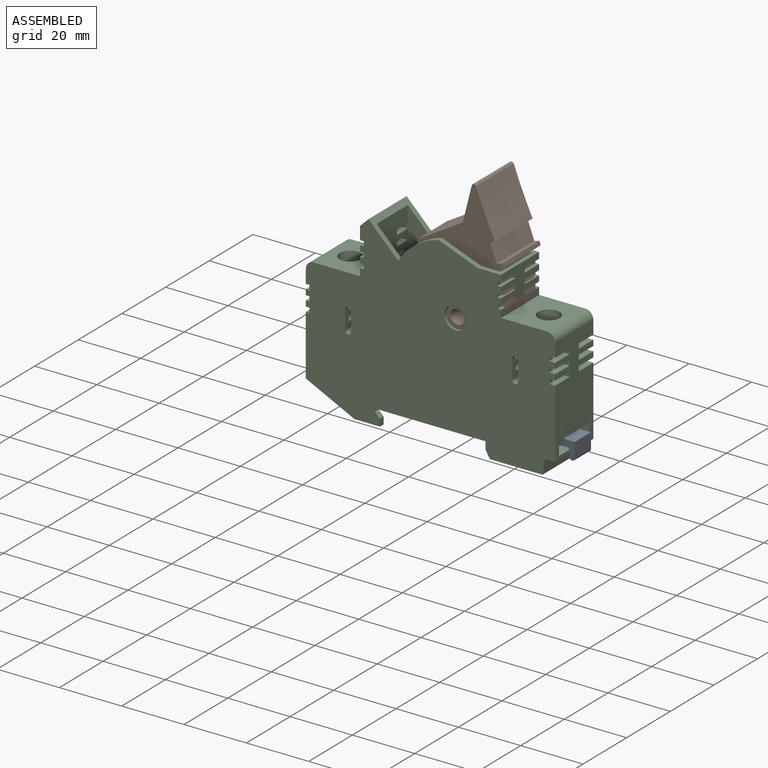
[diagram: assembled view]
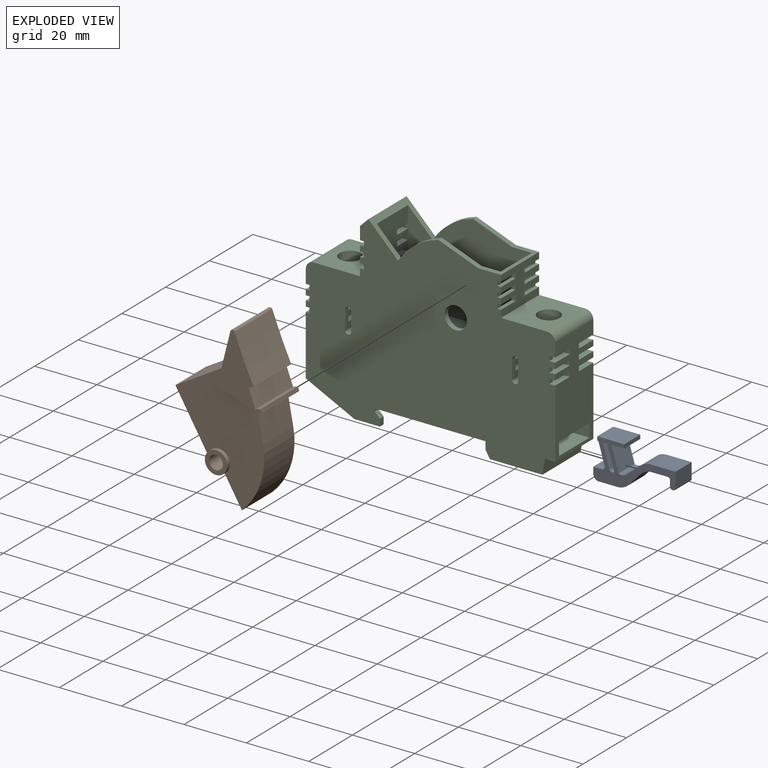
[diagram: exploded view]
GUIDED TOUR — MATED ASSEMBLY (Onshape document b87afcfeec9a8263c654b6d3, AutoMate assembly b87afcfeec9a8263c654b6d3_7910319d848bdd39f43905f7_448a4417e47df3bc1e501c4e_default)

This assembly has 3 components, labeled P0..P2 below (a component is one placed occurrence of a part; the same part can appear more than once), held together by 5 mates. A mate is a constraint between two components; its type names the relative motion it leaves free:
  CYLINDRICAL — leaves both rotation about and translation along the listed axis free,
  PLANAR — leaves sliding in the plane through the listed point (normal = the listed direction) and rotation about that normal free.
Axis/direction vectors are unit vectors and 'through' points are millimeter coordinates, both in the assembly's world frame.

MATES
  1. PLANAR "Planar 2": P0 <-> P2, direction (-1.000, 0.000, 0.000) through (51.93, 6.97, 7.49) mm
  2. CYLINDRICAL "Cylindrical 1": P1 <-> P2, axis (0.000, 1.000, 0.000) through (42.41, 15.38, 33.22) mm
  3. PLANAR "Planar 4": P1 <-> P2, direction (0.000, -1.000, 0.000) through (42.41, -1.04, 33.22) mm
  4. PLANAR "Planar 1": P0 <-> P2, direction (0.000, 0.000, 1.000) through (56.25, 6.97, 8.13) mm
  5. PLANAR "Planar 3": P0 <-> P2, direction (0.000, 1.000, 0.000) through (61.13, 10.66, 1.01) mm

ASSEMBLY ORDER
  1. P2 — the base component [order heuristic]
  2. P0 — core [order heuristic]
  3. P1 [order verified]
Order-tag legend:
  [order verified] — this step's position reverses a verified removal order: the component was checked to insert without passing through the ones already placed.
  [order heuristic] — the first 2 components form the assembly's core: parts whose collision-free extraction could not be verified, listed in mate-graph order.

Of the 3 components, 1 carries the full construction recipe — the FeatureScript program that regenerates the part's solid from scratch; the rest are supplied as boundary geometry only.
Each toured component is shown spotlighted twice — in the assembled view, then in the exploded view, where a leader line traces a displaced component back to its assembled socket (saturated green if recipe-attached, orange if geometry-only; every other component desaturated gray) — followed by its recipe or geometry summary and the mates that hold it.
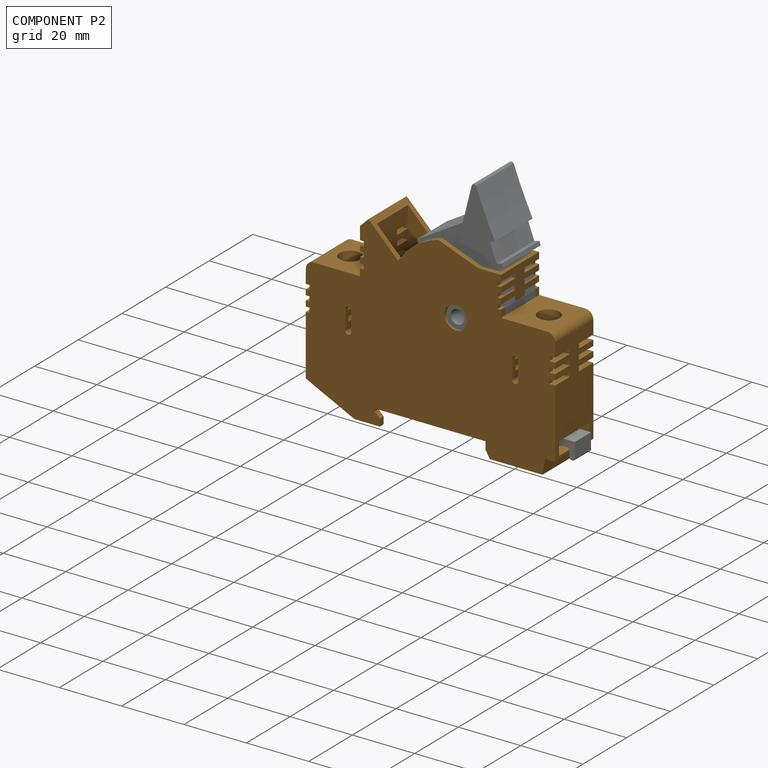
[diagram: component P2 — assembled]
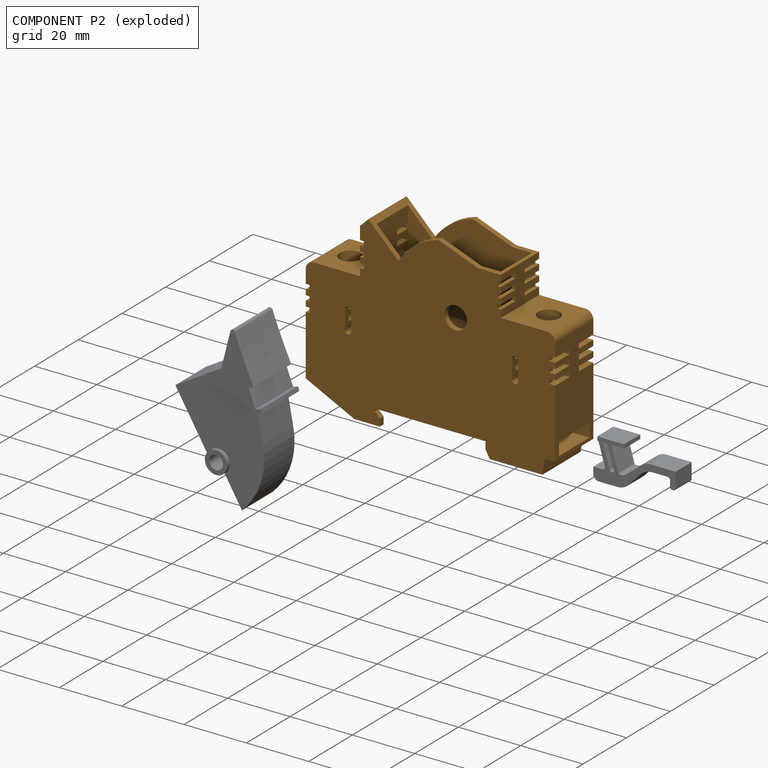
[diagram: component P2 — exploded]
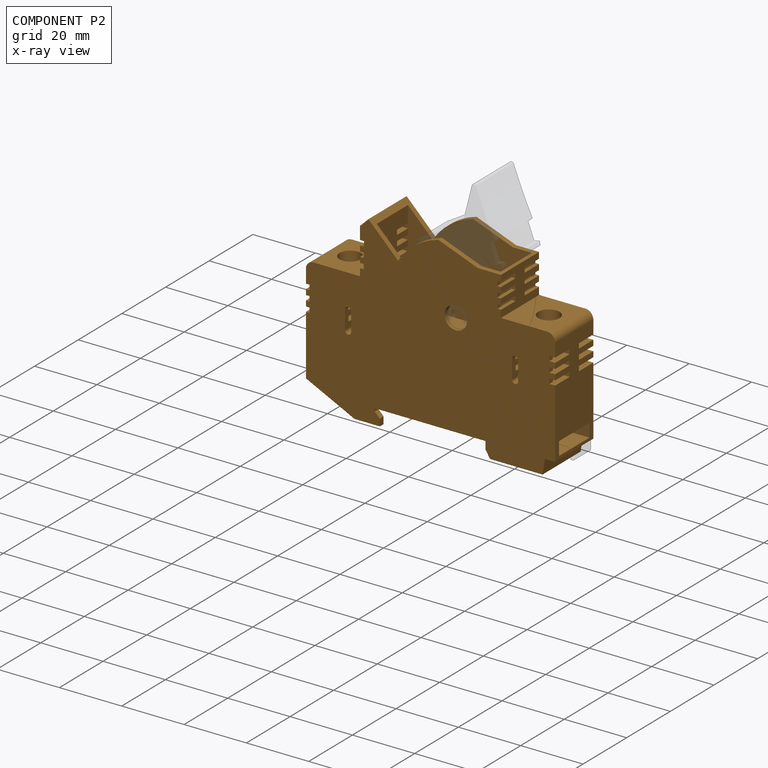
[diagram: component P2 — x-ray view]
COMPONENT P2 — geometry summary (no construction recipe available for this part):
  bounding box: 80.0 x 59.2 x 17.5 mm
  B-rep topology: 1 solid, 207 faces, 1513 edges
  volume: 42278 mm^3 (51% of its bounding box)
  symmetry: mirror-symmetric across its y mid-plane
Held by: PLANAR mate "Planar 2" to P0; CYLINDRICAL mate "Cylindrical 1" to P1; PLANAR mate "Planar 4" to P1; PLANAR mate "Planar 1" to P0; PLANAR mate "Planar 3" to P0.
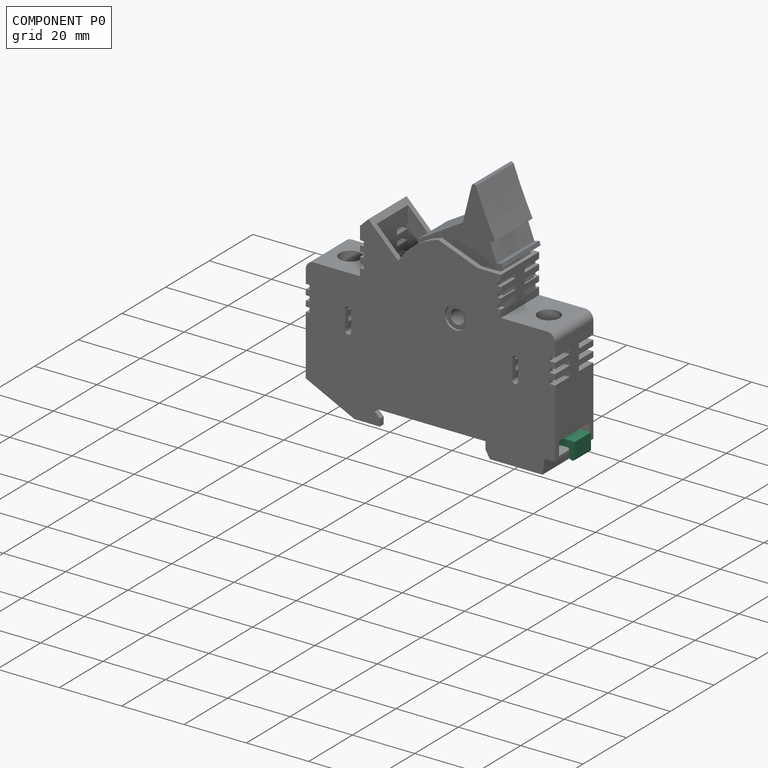
[diagram: component P0 — assembled]
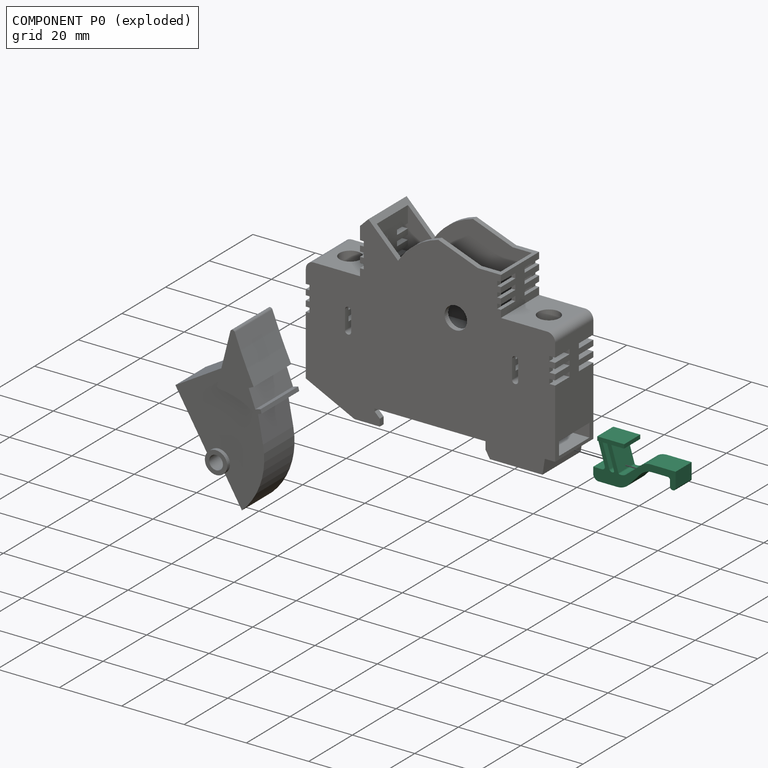
[diagram: component P0 — exploded]
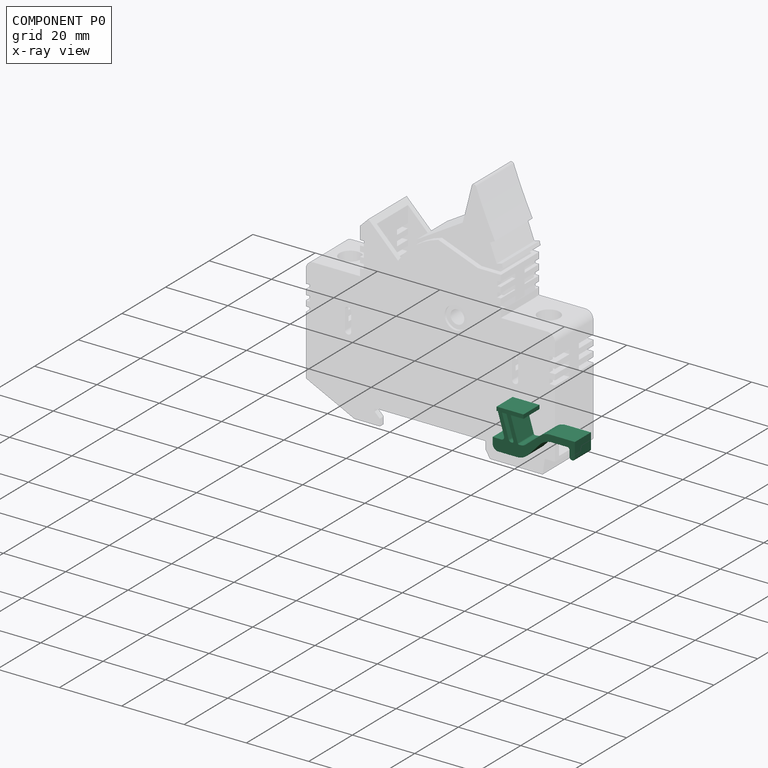
[diagram: component P0 — x-ray view]
COMPONENT P0 — recipe-attached (CADFS 00717068, mesh-verified: the recipe's output STEP matches this component's geometry to below the mesh-comparison resolution (tessellation chordal tolerance ~0.0455 mm)).
Held by: PLANAR mate "Planar 2" to P2; PLANAR mate "Planar 1" to P2; PLANAR mate "Planar 3" to P2.
Construction recipe (FeatureScript — the CAD program that rebuilds this solid; sketch coordinates are in the units given by the * unit suffixes, e.g. mm):

FeatureScript 1511;
import(path : "onshape/std/geometry.fs", version : "1511.0");
import(path : "onshape/std/common.fs", version : "1511.0");
const mm = millimeter;
const VERTEX = EntityType.VERTEX;
const EDGE = EntityType.EDGE;
const FACE = EntityType.FACE;
const BODY = EntityType.BODY;
function v(x, y){return vector(x, y);}
function OD(order){return orderDisambiguation(order);}
function OSD(set){return originalSetDisambiguation(set);}
function TD(topology){return topologyDisambiguation(topology);}
function TDD(query){return trueDependencyDisambiguation(query);}
function sQuery(a, b, c) {return sketchEntityQuery(a, b, c);}

annotation { "Feature Type Name" : "Feature", "Feature Type Description" : "" }
export const myFeature = defineFeature(function(context is Context, id is Id, definition is map)
    precondition{}
    {
        {
            var Q0;
            Q0=qCreatedBy(makeId("Front.planeOp"),FACE);
            var sketch = newSketch(context, id + "F0", { "sketchPlane" : qUnion([Q0])});
            skLineSegment(sketch, "E0.bottom", {"start": v(-8.13, 12.95) * mm, "end": v(-2.21, 12.95) * mm});
            skLineSegment(sketch, "E0.top", {"start": v(-8.64, 0) * mm, "end": v(0, 0) * mm});
            skLineSegment(sketch, "E0.left", {"start": v(-8.64, 12.88) * mm, "end": v(-8.64, 9.14) * mm});
            skLineSegment(sketch, "E0.right", {"start": v(0, 12.45) * mm, "end": v(0, 9.14) * mm});
            skLineSegment(sketch, "E1.bottom", {"start": v(-2.21, 12.95) * mm, "end": v(-8.13, 12.95) * mm});
            skLineSegment(sketch, "E1.top", {"start": v(-7.08, 9.14) * mm, "end": v(-9.9, 9.14) * mm});
            skLineSegment(sketch, "E1.left", {"start": v(0, 12.45) * mm, "end": v(0, 9.14) * mm, "construction": true});
            skLineSegment(sketch, "E1.right", {"start": v(-9.9, 11.18) * mm, "end": v(-9.9, 9.14) * mm});
            skPoint(sketch, "E2.visualSharp", {"position": v(-9.9, 12.95) * mm});
            skArc(sketch, "E2.filletArc", {"start": v(-8.13, 12.95) * mm, "mid": v(-9.39, 12.43) * mm, "end": v(-9.9, 11.18) * mm});
            skLineSegment(sketch, "E3", {"start": v(8.56, 3.56) * mm, "end": v(10.44, 3.56) * mm});
            skLineSegment(sketch, "E4", {"start": v(-8.25, 1.27) * mm, "end": v(-6.23, 8) * mm});
            skLineSegment(sketch, "E5", {"start": v(-6.9, 1.27) * mm, "end": v(-4.73, 8.51) * mm});
            skLineSegment(sketch, "E6", {"start": v(-5.44, 1.27) * mm, "end": v(-3.24, 8.6) * mm});
            skLineSegment(sketch, "E7", {"start": v(-4.1, 1.27) * mm, "end": v(-1.82, 8.84) * mm});
            skLineSegment(sketch, "E8", {"start": v(-7.26, 4.57) * mm, "end": v(-5.91, 4.57) * mm, "construction": true});
            skLineSegment(sketch, "E9", {"start": v(-4.45, 4.57) * mm, "end": v(-3.1, 4.57) * mm, "construction": true});
            skPoint(sketch, "E10.newPointA", {"position": v(-5.88, 9.14) * mm});
            skArc(sketch, "E10.filletArc", {"start": v(-6.23, 8) * mm, "mid": v(-6.37, 8.79) * mm, "end": v(-7.08, 9.14) * mm});
            skLineSegment(sketch, "E11", {"start": v(-3.88, 9.14) * mm, "end": v(-3.65, 9.14) * mm});
            skPoint(sketch, "E12.visualSharp", {"position": v(-4.54, 9.14) * mm});
            skArc(sketch, "E12.filletArc", {"start": v(-3.88, 9.14) * mm, "mid": v(-4.4, 8.97) * mm, "end": v(-4.73, 8.51) * mm});
            skPoint(sketch, "E13.visualSharp", {"position": v(-3.07, 9.14) * mm});
            skArc(sketch, "E13.filletArc", {"start": v(-3.24, 8.6) * mm, "mid": v(-3.3, 8.97) * mm, "end": v(-3.65, 9.14) * mm});
            skLineSegment(sketch, "E14", {"start": v(-1.4, 9.14) * mm, "end": v(-0.92, 9.14) * mm});
            skPoint(sketch, "E15.visualSharp", {"position": v(-1.73, 9.14) * mm});
            skArc(sketch, "E15.filletArc", {"start": v(-1.4, 9.14) * mm, "mid": v(-1.66, 9.06) * mm, "end": v(-1.82, 8.84) * mm});
            skLineSegment(sketch, "E16", {"start": v(-8.64, 1.27) * mm, "end": v(0, 1.27) * mm});
            skPoint(sketch, "E17.orphan", {"position": v(-7.29, 0) * mm});
            skPoint(sketch, "E18.orphan", {"position": v(-5.82, 0) * mm});
            skPoint(sketch, "E19.orphan", {"position": v(-4.48, 0) * mm});
            skLineSegment(sketch, "E20.trimOffspring", {"start": v(-8.64, 1.27) * mm, "end": v(-8.64, 0) * mm});
            skLineSegment(sketch, "E21.trimOffspring", {"start": v(0, 1.27) * mm, "end": v(0, 0) * mm});
            skLineSegment(sketch, "E22", {"start": v(0.7, 8.56) * mm, "end": v(5.32, 4.73) * mm});
            skPoint(sketch, "E23.visualSharp", {"position": v(0, 9.14) * mm});
            skArc(sketch, "E23.filletArc", {"start": v(0.7, 8.56) * mm, "mid": v(-0.05, 9) * mm, "end": v(-0.92, 9.14) * mm});
            skLineSegment(sketch, "E24", {"start": v(1.5, 11.33) * mm, "end": v(5.22, 7.34) * mm});
            skLineSegment(sketch, "E25", {"start": v(6.73, 3.56) * mm, "end": v(6.73, 5.72) * mm, "construction": true});
            skPoint(sketch, "E26.visualSharp", {"position": v(0, 12.95) * mm});
            skArc(sketch, "E26.filletArc", {"start": v(1.5, 11.33) * mm, "mid": v(-0.18, 12.53) * mm, "end": v(-2.21, 12.95) * mm});
            skPoint(sketch, "E27.visualSharp", {"position": v(6.73, 3.56) * mm});
            skArc(sketch, "E27.filletArc", {"start": v(5.32, 4.73) * mm, "mid": v(6.84, 3.86) * mm, "end": v(8.56, 3.56) * mm});
            skLineSegment(sketch, "E28", {"start": v(8.94, 5.72) * mm, "end": v(10.44, 5.72) * mm});
            skLineSegment(sketch, "E29", {"start": v(10.44, 3.56) * mm, "end": v(10.44, 5.72) * mm, "construction": true});
            skPoint(sketch, "E30.visualSharp", {"position": v(6.73, 5.72) * mm});
            skArc(sketch, "E30.filletArc", {"start": v(5.22, 7.34) * mm, "mid": v(6.91, 6.14) * mm, "end": v(8.94, 5.72) * mm});
            skLineSegment(sketch, "E31", {"start": v(16.51, 8.38) * mm, "end": v(16.51, 3.56) * mm});
            skLineSegment(sketch, "E32", {"start": v(10.44, 3.56) * mm, "end": v(16.51, 3.56) * mm});
            skLineSegment(sketch, "E33", {"start": v(15.75, 9.14) * mm, "end": v(15.5, 9.14) * mm});
            skLineSegment(sketch, "E34", {"start": v(14.73, 8.38) * mm, "end": v(14.73, 6.48) * mm});
            skLineSegment(sketch, "E35", {"start": v(13.97, 5.72) * mm, "end": v(10.44, 5.72) * mm});
            skPoint(sketch, "E36.visualSharp", {"position": v(16.51, 9.14) * mm});
            skArc(sketch, "E36.filletArc", {"start": v(16.51, 8.38) * mm, "mid": v(16.29, 8.92) * mm, "end": v(15.75, 9.14) * mm});
            skPoint(sketch, "E37.visualSharp", {"position": v(14.73, 9.14) * mm});
            skArc(sketch, "E37.filletArc", {"start": v(15.5, 9.14) * mm, "mid": v(14.96, 8.92) * mm, "end": v(14.73, 8.38) * mm});
            skPoint(sketch, "E38.visualSharp", {"position": v(14.73, 5.72) * mm});
            skArc(sketch, "E38.filletArc", {"start": v(13.97, 5.72) * mm, "mid": v(14.5, 5.94) * mm, "end": v(14.73, 6.48) * mm});
            skSolve(sketch);
        }
        {
            var Q0;
            Q0 = qSketchRegion(id + "F0", true);
            extrude(context, id + "F1", {"entities" : qUnion([Q0]), "depth" : 7.37 * mm, "offsetDistance" : 25.4 * mm});
        }
    });
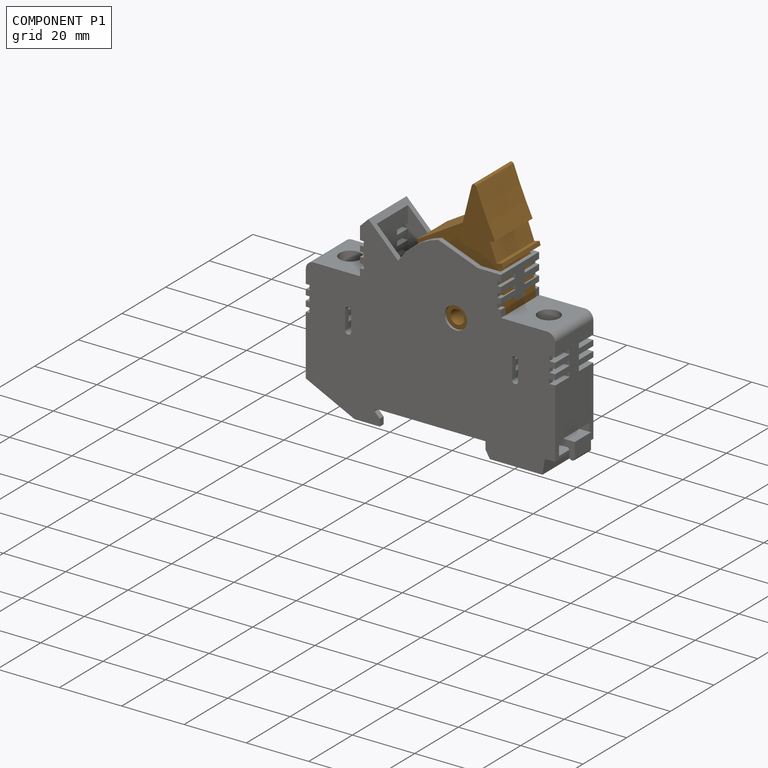
[diagram: component P1 — assembled]
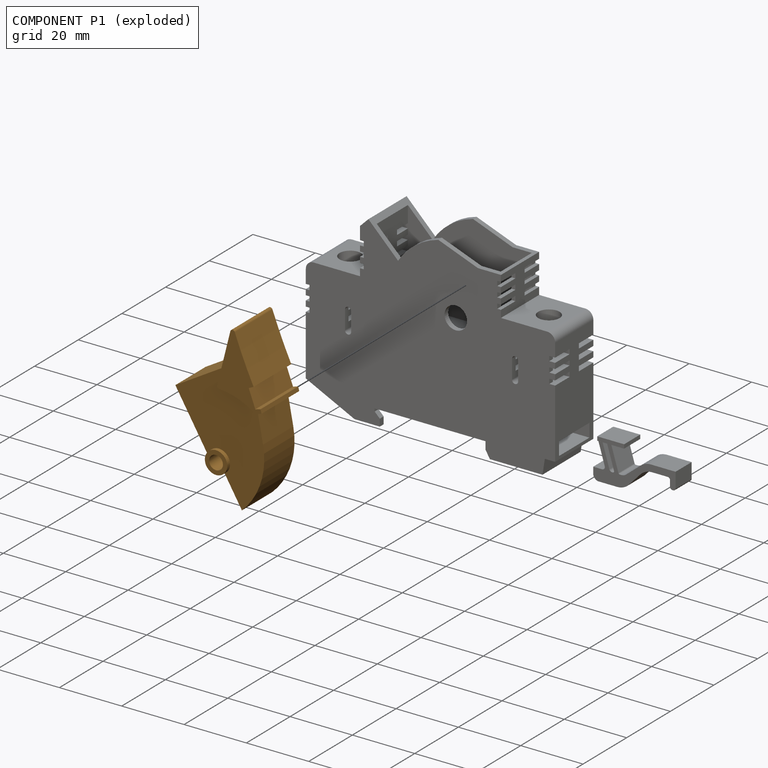
[diagram: component P1 — exploded]
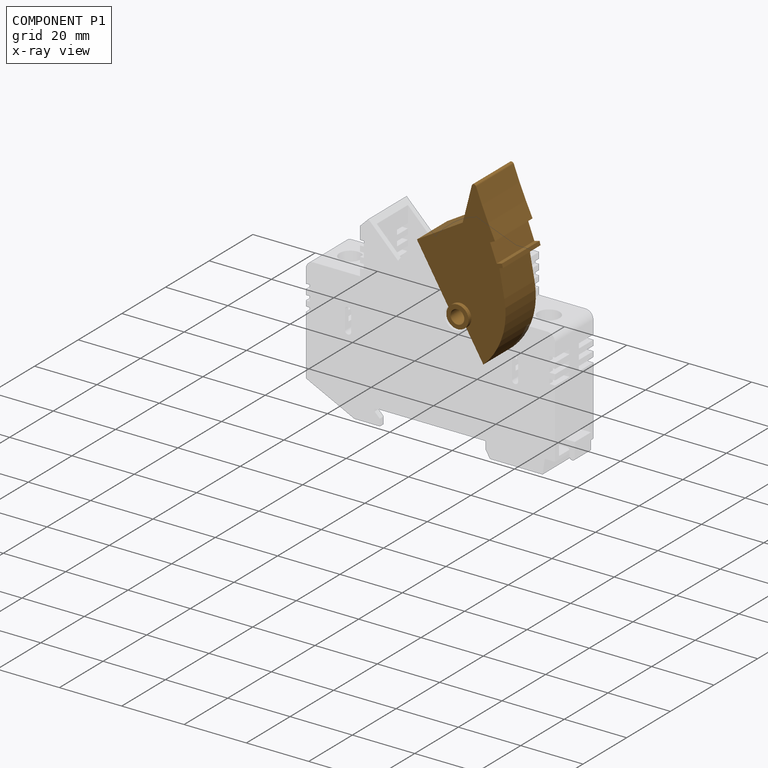
[diagram: component P1 — x-ray view]
COMPONENT P1 — geometry summary (no construction recipe available for this part):
  bounding box: 46.1 x 29.4 x 17.3 mm
  B-rep topology: 1 solid, 27 faces, 144 edges
  volume: 10804 mm^3 (46% of its bounding box)
  symmetry: mirror-symmetric across its y mid-plane
Held by: CYLINDRICAL mate "Cylindrical 1" to P2; PLANAR mate "Planar 4" to P2.
PROVENANCE & LICENSES
Assembly (occurrences, transforms, mates, per-part STEP geometry): AutoMate dataset, Zenodo record 7776208, CC0.
Construction recipes: CADFS (HuggingFace VladPyatov/CADFS, CC-BY-4.0, layered over the ABC dataset), FeatureScript reconstruction programs keyed by ABC model id.
Join: ABC meta listings map ABC model id -> Onshape documentId; within a shared document, parts are matched by geometric signature (bounding-box dims + volume at 0.1% relative tolerance, exact B-rep face/solid counts).
Verification: 1 of this assembly's 3 components carries a recipe attachment, and every attachment is mesh-verified: the CADFS STEP and the AutoMate member STEP were compared as meshes in their shared local frame (symmetric sampled-point-to-mesh distance); worst across the 1 attachment: below the mesh-comparison resolution (tessellation chordal tolerance ~0.0455 mm) on a 30 mm part.
Renders: orthographic iso camera (az 35 / el 25); the floor grid conveys scale (grid pitch printed in each image; no ruler). In the exploded view each component is displaced by its stored offset vector: the offsets alone carry the explosion direction (mate normal/axis signs are not orientation cues and do not encode it), and separation distances are assigned per mate-chain, not proportionally to assembly-order depth.
